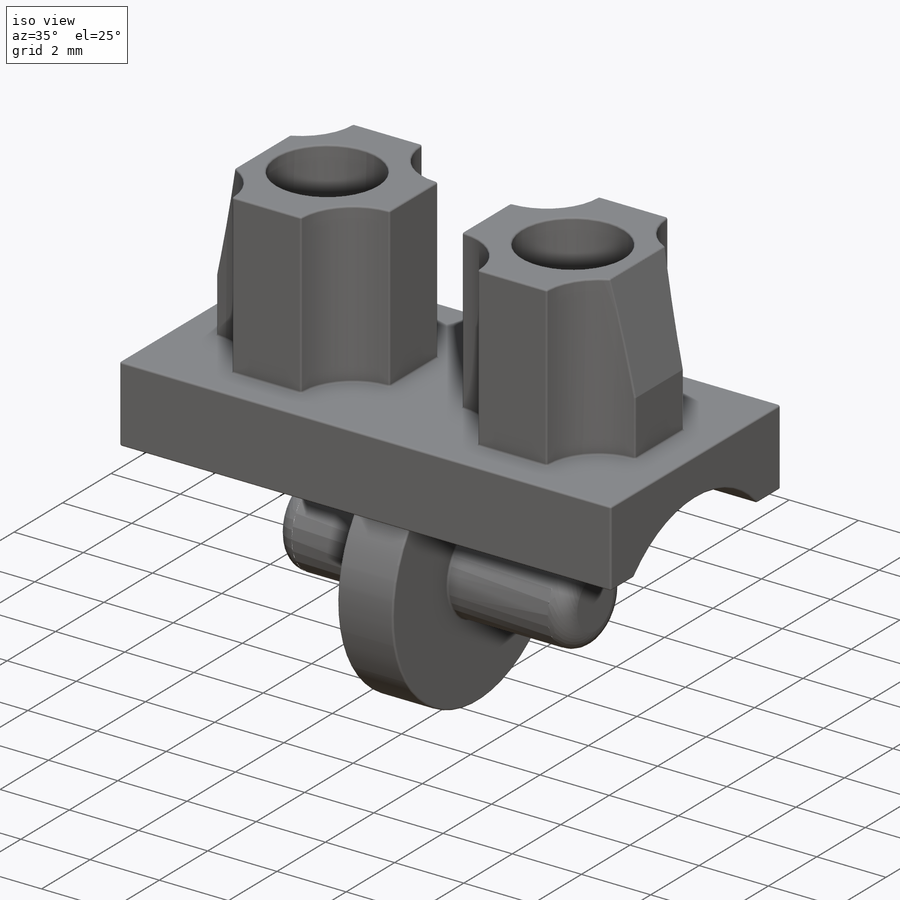
[diagram: iso view]
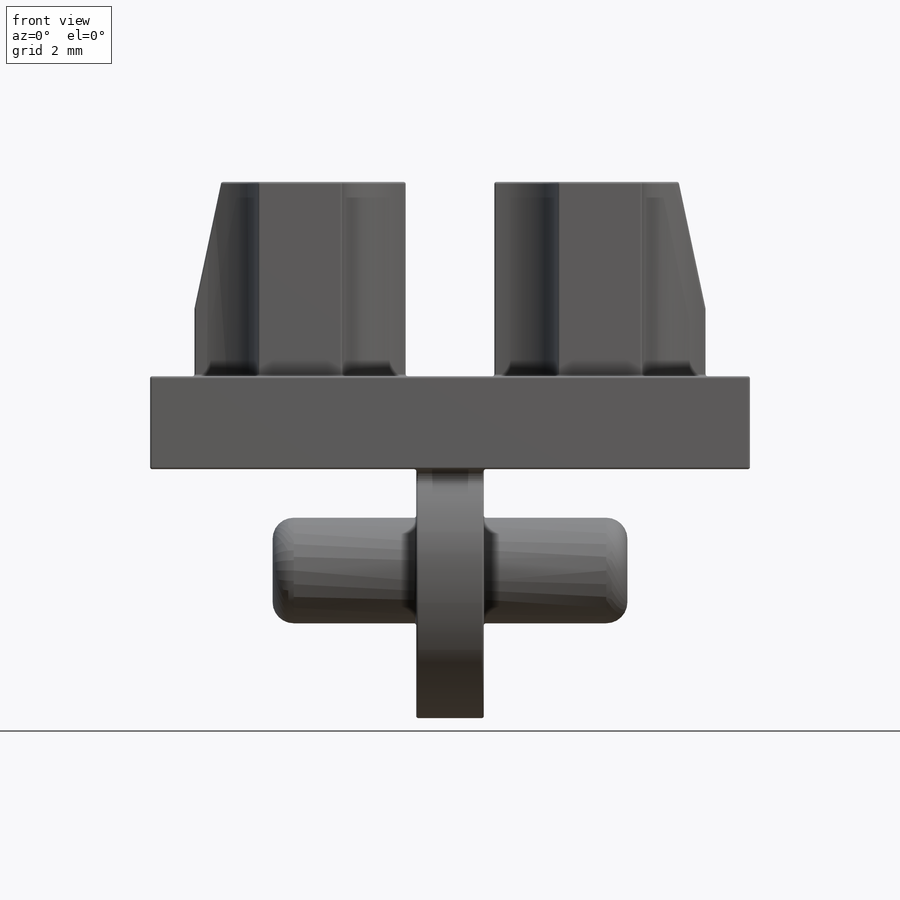
[diagram: front view]
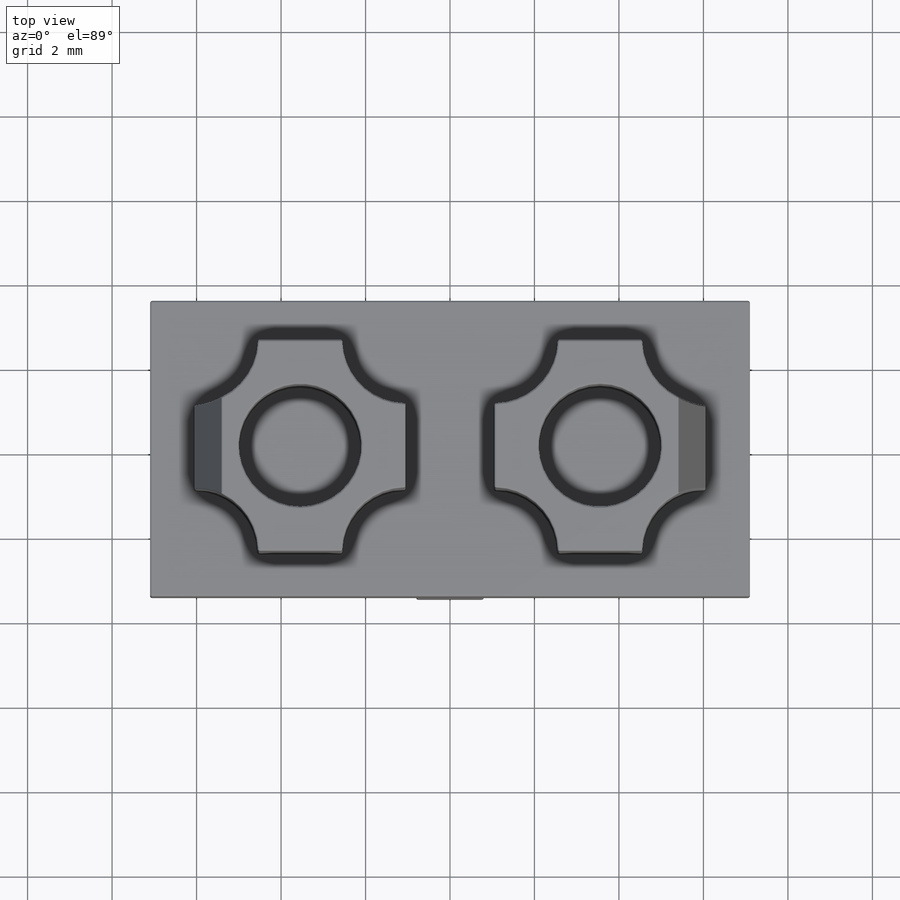
[diagram: top view]
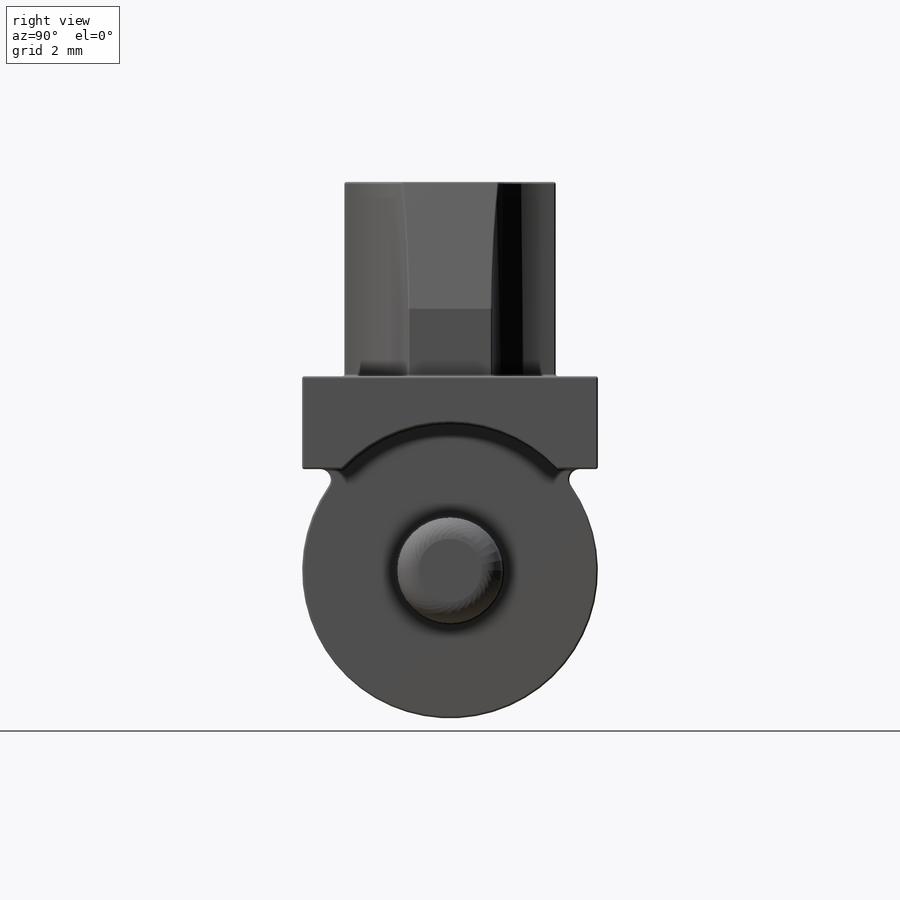
[diagram: right view]
SOLIDWORKS PART (.sldprt)
format: sldprt  version: not decoded by parser v0  size: 615,936 bytes
history: native  units: mm
features: sketch x6, extrude x5, fillet x3, material x1, chamfer x1, cut_extrude x1 (+14 scaffold rows collapsed)
feature tree (31):
  scaffold x14  (default folders/planes/origin — collapsed)
  material  "Material <not specified>"
  sketch  "Sketch1"  dims[D1=7.0mm]
  extrude  "Extrude1"  Depth=0.8mm
  sketch  "Sketch3"  dims[D1=2.2mm]
  extrude  "Extrude2"  Depth=7.1mm
  fillet  "Fillet1"  Radius=0.25mm
  sketch  "Sketch4"  dims[D1=2.5mm]
  extrude  "Extrude3"  Depth=3.4mm
  sketch  "Sketch5"  dims[D1=2.5mm]
  extrude  "Extrude4"  Depth=3.4mm
  fillet  "Fillet2"  Radius=0.5mm
  sketch  "Sketch6"  dims[D1=5.0mm D2=3.55mm D3=2.0mm]
  extrude  "Extrude5"  Depth=4.6mm
  chamfer  "Chamfer1"  Distance=3mm Angle=12deg
  sketch  "Sketch7"  dims[D1=2.9mm]
  cut_extrude  "Extrude6"  [1 undecoded]
  fillet  "Fillet3"  Radius=0.05mm
decode coverage: 15 of 16 modeling features carry decoded parameters
note: 1 parameter value undecoded
note: suppression state not decoded; provenance and decode notes live in map.json
